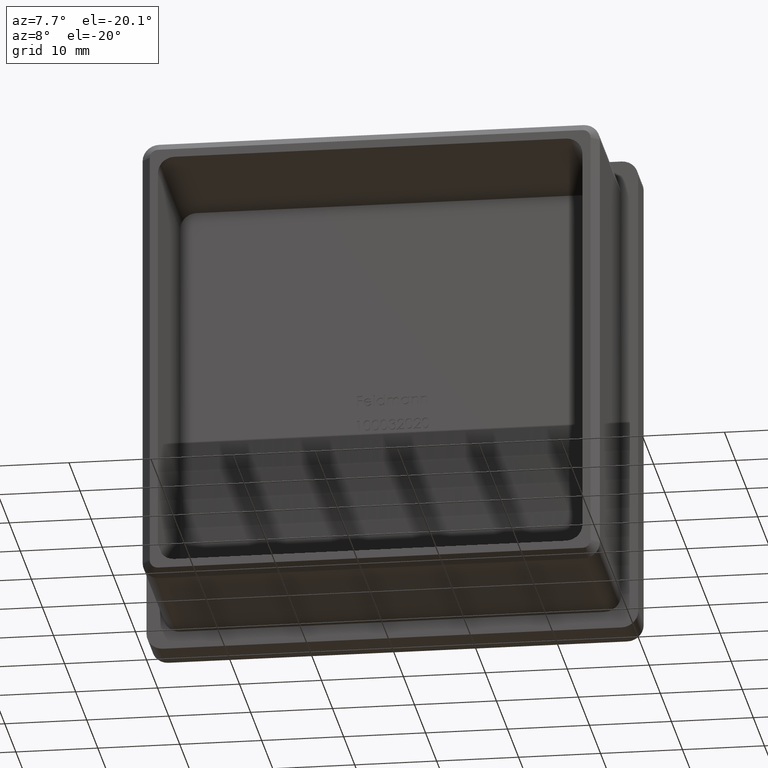
[diagram: clean part render]
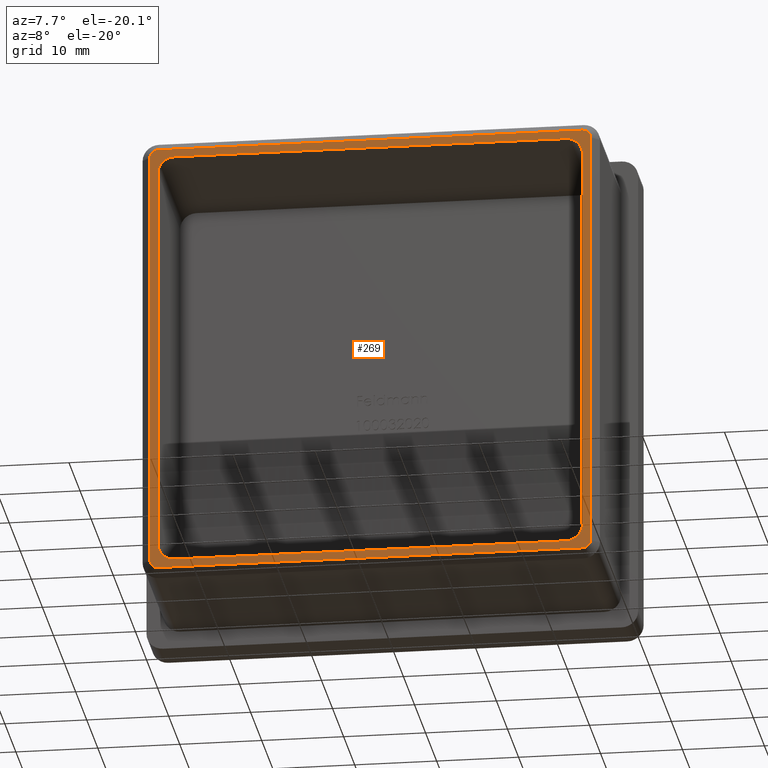
[diagram: same view with one face highlighted and labeled with its STEP entity id]
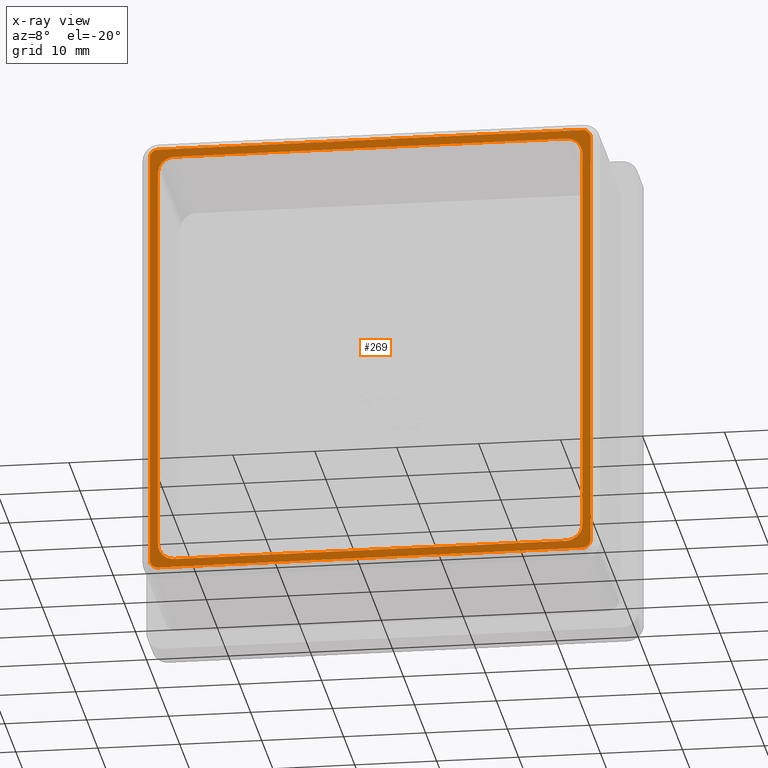
[diagram: x-ray of the same camera — body ghosted, the highlighted face saturated]
A machine part, auxiliary view. The second image highlights one B-rep face of the part: STEP entity #269.
The next image is the same camera in x-ray: the body ghosted, the highlighted face saturated — about 0% of this face is hidden behind the body in this view.
In plain terms, the highlighted planar face has unit normal (0, -1, 0).
Its self-contained STEP definition (entity closure, byte-faithful):
#119 = DIRECTION ( 'NONE',  ( 0.0000000000000000000, 0.0000000000000000000, -1.000000000000000000 ) ) ;
#139 = FACE_BOUND ( 'NONE', #9648, .T. ) ;
#169 = CARTESIAN_POINT ( 'NONE',  ( 25.89999999999999900, -20.00000000000000000, -23.89999999999999100 ) ) ;
#173 = ORIENTED_EDGE ( 'NONE', *, *, #3579, .F. ) ;
#269 = ADVANCED_FACE ( 'NONE', ( #7870, #139 ), #9828, .T. ) ;
#283 = ORIENTED_EDGE ( 'NONE', *, *, #11889, .T. ) ;
#347 = DIRECTION ( 'NONE',  ( -0.0000000000000000000, 1.000000000000000000, -0.0000000000000000000 ) ) ;
#542 = AXIS2_PLACEMENT_3D ( 'NONE', #13295, #9874, #14602 ) ;
#822 = EDGE_CURVE ( 'NONE', #8683, #14669, #5299, .T. ) ;
#855 = ORIENTED_EDGE ( 'NONE', *, *, #7837, .F. ) ;
#869 = CIRCLE ( 'NONE', #542, 2.000000000000001800 ) ;
#1151 = CARTESIAN_POINT ( 'NONE',  ( 25.89999999999999100, -20.00000000000000000, -25.89999999999999100 ) ) ;
#1172 = VECTOR ( 'NONE', #2475, 1000.000000000000000 ) ;
#1254 = CARTESIAN_POINT ( 'NONE',  ( 25.89999999999999100, -20.00000000000000000, -26.89999999999999500 ) ) ;
#1399 = EDGE_CURVE ( 'NONE', #14956, #5148, #869, .T. ) ;
#1462 = AXIS2_PLACEMENT_3D ( 'NONE', #5654, #10394, #6839 ) ;
#1707 = DIRECTION ( 'NONE',  ( -1.000000000000000000, 0.0000000000000000000, 0.0000000000000000000 ) ) ;
#1746 = LINE ( 'NONE', #6439, #7262 ) ;
#1909 = CARTESIAN_POINT ( 'NONE',  ( 25.89999999999999100, -20.00000000000000000, -26.89999999999999500 ) ) ;
#1951 = VERTEX_POINT ( 'NONE', #11788 ) ;
#2051 = VERTEX_POINT ( 'NONE', #9606 ) ;
#2275 = DIRECTION ( 'NONE',  ( -1.000000000000000000, -0.0000000000000000000, -0.0000000000000000000 ) ) ;
#2400 = EDGE_CURVE ( 'NONE', #2051, #8139, #4920, .T. ) ;
#2475 = DIRECTION ( 'NONE',  ( 0.0000000000000000000, 0.0000000000000000000, 1.000000000000000000 ) ) ;
#2672 = LINE ( 'NONE', #8383, #3618 ) ;
#2771 = EDGE_CURVE ( 'NONE', #8139, #10140, #5822, .T. ) ;
#2836 = DIRECTION ( 'NONE',  ( 0.0000000000000000000, -1.000000000000000000, 0.0000000000000000000 ) ) ;
#3579 = EDGE_CURVE ( 'NONE', #8683, #5148, #2672, .T. ) ;
#3618 = VECTOR ( 'NONE', #10693, 1000.000000000000000 ) ;
#3862 = CARTESIAN_POINT ( 'NONE',  ( 23.89999999999999900, -20.00000000000000000, -23.89999999999999100 ) ) ;
#4030 = EDGE_CURVE ( 'NONE', #11184, #14669, #13421, .T. ) ;
#4207 = AXIS2_PLACEMENT_3D ( 'NONE', #13055, #13200, #11977 ) ;
#4307 = EDGE_CURVE ( 'NONE', #8977, #2051, #7082, .T. ) ;
#4494 = ORIENTED_EDGE ( 'NONE', *, *, #10550, .T. ) ;
#4643 = AXIS2_PLACEMENT_3D ( 'NONE', #5147, #2836, #10869 ) ;
#4747 = CARTESIAN_POINT ( 'NONE',  ( 26.89999999999999500, -20.00000000000000000, -25.89999999999999100 ) ) ;
#4821 = DIRECTION ( 'NONE',  ( 1.000000000000000000, 0.0000000000000000000, 0.0000000000000000000 ) ) ;
#4826 = ORIENTED_EDGE ( 'NONE', *, *, #13640, .T. ) ;
#4886 = EDGE_CURVE ( 'NONE', #10407, #8313, #1746, .T. ) ;
#4899 = ORIENTED_EDGE ( 'NONE', *, *, #6821, .T. ) ;
#4920 = CIRCLE ( 'NONE', #4207, 1.000000000000000900 ) ;
#5031 = DIRECTION ( 'NONE',  ( 0.0000000000000000000, -1.000000000000000000, 0.0000000000000000000 ) ) ;
#5147 = CARTESIAN_POINT ( 'NONE',  ( -25.89999999999999100, -20.00000000000000000, 25.89999999999999100 ) ) ;
#5148 = VERTEX_POINT ( 'NONE', #10512 ) ;
#5165 = EDGE_CURVE ( 'NONE', #7149, #1951, #14660, .T. ) ;
#5299 = CIRCLE ( 'NONE', #7634, 2.000000000000001800 ) ;
#5318 = CARTESIAN_POINT ( 'NONE',  ( -25.89999999999999100, -20.00000000000000000, -23.89999999999999900 ) ) ;
#5460 = ORIENTED_EDGE ( 'NONE', *, *, #5165, .T. ) ;
#5621 = VECTOR ( 'NONE', #8201, 1000.000000000000000 ) ;
#5654 = CARTESIAN_POINT ( 'NONE',  ( -23.89999999999999100, -20.00000000000000000, -23.89999999999999900 ) ) ;
#5724 = CARTESIAN_POINT ( 'NONE',  ( -23.89999999999999100, -20.00000000000000000, 23.89999999999999100 ) ) ;
#5822 = LINE ( 'NONE', #1254, #11605 ) ;
#6038 = CARTESIAN_POINT ( 'NONE',  ( 25.89999999999999100, -20.00000000000000000, 25.89999999999999100 ) ) ;
#6041 = DIRECTION ( 'NONE',  ( 0.0000000000000000000, -1.000000000000000000, 0.0000000000000000000 ) ) ;
#6332 = ORIENTED_EDGE ( 'NONE', *, *, #4886, .T. ) ;
#6429 = CARTESIAN_POINT ( 'NONE',  ( 23.89999999999999900, -20.00000000000000000, -25.89999999999999100 ) ) ;
#6439 = CARTESIAN_POINT ( 'NONE',  ( -25.89999999999999100, -20.00000000000000000, 26.89999999999999500 ) ) ;
#6482 = LINE ( 'NONE', #14550, #7398 ) ;
#6534 = CARTESIAN_POINT ( 'NONE',  ( 23.89999999999999100, -20.00000000000000000, 25.89999999999999100 ) ) ;
#6786 = ORIENTED_EDGE ( 'NONE', *, *, #4307, .T. ) ;
#6807 = ORIENTED_EDGE ( 'NONE', *, *, #4030, .F. ) ;
#6821 = EDGE_CURVE ( 'NONE', #11184, #13789, #8137, .T. ) ;
#6839 = DIRECTION ( 'NONE',  ( 0.0000000000000000000, 0.0000000000000000000, -1.000000000000000000 ) ) ;
#7049 = CARTESIAN_POINT ( 'NONE',  ( -26.89999999999999500, -20.00000000000000000, -25.89999999999999100 ) ) ;
#7082 = LINE ( 'NONE', #7049, #5621 ) ;
#7149 = VERTEX_POINT ( 'NONE', #4747 ) ;
#7262 = VECTOR ( 'NONE', #1707, 1000.000000000000000 ) ;
#7394 = VECTOR ( 'NONE', #2275, 1000.000000000000000 ) ;
#7398 = VECTOR ( 'NONE', #13194, 1000.000000000000000 ) ;
#7483 = AXIS2_PLACEMENT_3D ( 'NONE', #1151, #6041, #14088 ) ;
#7634 = AXIS2_PLACEMENT_3D ( 'NONE', #3862, #347, #13071 ) ;
#7837 = EDGE_CURVE ( 'NONE', #14956, #11910, #12479, .T. ) ;
#7870 = FACE_OUTER_BOUND ( 'NONE', #9368, .T. ) ;
#8090 = CARTESIAN_POINT ( 'NONE',  ( -26.89999999999999500, -20.00000000000000000, 25.89999999999999100 ) ) ;
#8137 = CIRCLE ( 'NONE', #1462, 2.000000000000001800 ) ;
#8139 = VERTEX_POINT ( 'NONE', #8800 ) ;
#8201 = DIRECTION ( 'NONE',  ( 0.0000000000000000000, 0.0000000000000000000, -1.000000000000000000 ) ) ;
#8313 = VERTEX_POINT ( 'NONE', #12451 ) ;
#8383 = CARTESIAN_POINT ( 'NONE',  ( 25.89999999999999100, -20.00000000000000000, 25.89999999999999100 ) ) ;
#8458 = ORIENTED_EDGE ( 'NONE', *, *, #9105, .F. ) ;
#8683 = VERTEX_POINT ( 'NONE', #169 ) ;
#8800 = CARTESIAN_POINT ( 'NONE',  ( -25.89999999999999100, -20.00000000000000000, -26.89999999999999500 ) ) ;
#8877 = EDGE_CURVE ( 'NONE', #15038, #11910, #14995, .T. ) ;
#8977 = VERTEX_POINT ( 'NONE', #8090 ) ;
#9062 = CARTESIAN_POINT ( 'NONE',  ( -25.89999999999999100, -20.00000000000000000, 23.89999999999999100 ) ) ;
#9105 = EDGE_CURVE ( 'NONE', #15038, #13789, #6482, .T. ) ;
#9368 = EDGE_LOOP ( 'NONE', ( #283, #5460, #4826, #6332, #4494, #6786, #11572, #11216 ) ) ;
#9425 = VECTOR ( 'NONE', #9615, 1000.000000000000000 ) ;
#9606 = CARTESIAN_POINT ( 'NONE',  ( -26.89999999999999500, -20.00000000000000000, -25.89999999999999100 ) ) ;
#9615 = DIRECTION ( 'NONE',  ( 1.000000000000000000, 0.0000000000000000000, 1.339554807704098300E-016 ) ) ;
#9648 = EDGE_LOOP ( 'NONE', ( #6807, #4899, #8458, #15097, #855, #12467, #173, #10578 ) ) ;
#9666 = CIRCLE ( 'NONE', #13405, 1.000000000000000900 ) ;
#9828 = PLANE ( 'NONE',  #10886 ) ;
#9874 = DIRECTION ( 'NONE',  ( -0.0000000000000000000, 1.000000000000000000, -0.0000000000000000000 ) ) ;
#10140 = VERTEX_POINT ( 'NONE', #1909 ) ;
#10372 = DIRECTION ( 'NONE',  ( -0.0000000000000000000, 1.000000000000000000, -0.0000000000000000000 ) ) ;
#10394 = DIRECTION ( 'NONE',  ( -0.0000000000000000000, 1.000000000000000000, -0.0000000000000000000 ) ) ;
#10407 = VERTEX_POINT ( 'NONE', #14935 ) ;
#10440 = CIRCLE ( 'NONE', #4643, 1.000000000000000900 ) ;
#10512 = CARTESIAN_POINT ( 'NONE',  ( 25.89999999999999100, -20.00000000000000000, 23.89999999999999100 ) ) ;
#10550 = EDGE_CURVE ( 'NONE', #8313, #8977, #10440, .T. ) ;
#10578 = ORIENTED_EDGE ( 'NONE', *, *, #822, .T. ) ;
#10628 = DIRECTION ( 'NONE',  ( 0.0000000000000000000, -1.000000000000000000, 0.0000000000000000000 ) ) ;
#10693 = DIRECTION ( 'NONE',  ( -1.339554807704098500E-016, -0.0000000000000000000, 1.000000000000000000 ) ) ;
#10702 = CARTESIAN_POINT ( 'NONE',  ( -23.89999999999999100, -20.00000000000000000, -25.89999999999999900 ) ) ;
#10869 = DIRECTION ( 'NONE',  ( 0.0000000000000000000, 0.0000000000000000000, -1.000000000000000000 ) ) ;
#10886 = AXIS2_PLACEMENT_3D ( 'NONE', #11003, #5031, #12183 ) ;
#10927 = CARTESIAN_POINT ( 'NONE',  ( -25.89999999999999100, -20.00000000000000000, -25.89999999999999900 ) ) ;
#11003 = CARTESIAN_POINT ( 'NONE',  ( 0.0000000000000000000, -20.00000000000000000, 0.0000000000000000000 ) ) ;
#11145 = CIRCLE ( 'NONE', #7483, 1.000000000000000900 ) ;
#11184 = VERTEX_POINT ( 'NONE', #10702 ) ;
#11216 = ORIENTED_EDGE ( 'NONE', *, *, #2771, .T. ) ;
#11572 = ORIENTED_EDGE ( 'NONE', *, *, #2400, .T. ) ;
#11605 = VECTOR ( 'NONE', #4821, 1000.000000000000000 ) ;
#11788 = CARTESIAN_POINT ( 'NONE',  ( 26.89999999999999500, -20.00000000000000000, 25.89999999999999100 ) ) ;
#11889 = EDGE_CURVE ( 'NONE', #10140, #7149, #11145, .T. ) ;
#11910 = VERTEX_POINT ( 'NONE', #14948 ) ;
#11977 = DIRECTION ( 'NONE',  ( 0.0000000000000000000, 0.0000000000000000000, -1.000000000000000000 ) ) ;
#12183 = DIRECTION ( 'NONE',  ( 0.0000000000000000000, -0.0000000000000000000, -1.000000000000000000 ) ) ;
#12451 = CARTESIAN_POINT ( 'NONE',  ( -25.89999999999999100, -20.00000000000000000, 26.89999999999999500 ) ) ;
#12467 = ORIENTED_EDGE ( 'NONE', *, *, #1399, .T. ) ;
#12479 = LINE ( 'NONE', #14893, #7394 ) ;
#12795 = AXIS2_PLACEMENT_3D ( 'NONE', #5724, #10372, #13682 ) ;
#12908 = CARTESIAN_POINT ( 'NONE',  ( 26.89999999999999500, -20.00000000000000000, 25.89999999999999100 ) ) ;
#13055 = CARTESIAN_POINT ( 'NONE',  ( -25.89999999999999100, -20.00000000000000000, -25.89999999999999100 ) ) ;
#13071 = DIRECTION ( 'NONE',  ( 0.0000000000000000000, 0.0000000000000000000, -1.000000000000000000 ) ) ;
#13194 = DIRECTION ( 'NONE',  ( 0.0000000000000000000, -0.0000000000000000000, -1.000000000000000000 ) ) ;
#13200 = DIRECTION ( 'NONE',  ( 0.0000000000000000000, -1.000000000000000000, 0.0000000000000000000 ) ) ;
#13295 = CARTESIAN_POINT ( 'NONE',  ( 23.89999999999999100, -20.00000000000000000, 23.89999999999999100 ) ) ;
#13405 = AXIS2_PLACEMENT_3D ( 'NONE', #6038, #10628, #119 ) ;
#13421 = LINE ( 'NONE', #10927, #9425 ) ;
#13640 = EDGE_CURVE ( 'NONE', #1951, #10407, #9666, .T. ) ;
#13682 = DIRECTION ( 'NONE',  ( 0.0000000000000000000, 0.0000000000000000000, -1.000000000000000000 ) ) ;
#13789 = VERTEX_POINT ( 'NONE', #5318 ) ;
#14088 = DIRECTION ( 'NONE',  ( 0.0000000000000000000, 0.0000000000000000000, -1.000000000000000000 ) ) ;
#14550 = CARTESIAN_POINT ( 'NONE',  ( -25.89999999999999100, -20.00000000000000000, 25.89999999999999100 ) ) ;
#14602 = DIRECTION ( 'NONE',  ( 0.0000000000000000000, 0.0000000000000000000, -1.000000000000000000 ) ) ;
#14660 = LINE ( 'NONE', #12908, #1172 ) ;
#14669 = VERTEX_POINT ( 'NONE', #6429 ) ;
#14893 = CARTESIAN_POINT ( 'NONE',  ( -25.89999999999999100, -20.00000000000000000, 25.89999999999999100 ) ) ;
#14935 = CARTESIAN_POINT ( 'NONE',  ( 25.89999999999999100, -20.00000000000000000, 26.89999999999999500 ) ) ;
#14948 = CARTESIAN_POINT ( 'NONE',  ( -23.89999999999999100, -20.00000000000000000, 25.89999999999999100 ) ) ;
#14956 = VERTEX_POINT ( 'NONE', #6534 ) ;
#14995 = CIRCLE ( 'NONE', #12795, 2.000000000000001800 ) ;
#15038 = VERTEX_POINT ( 'NONE', #9062 ) ;
#15097 = ORIENTED_EDGE ( 'NONE', *, *, #8877, .T. ) ;